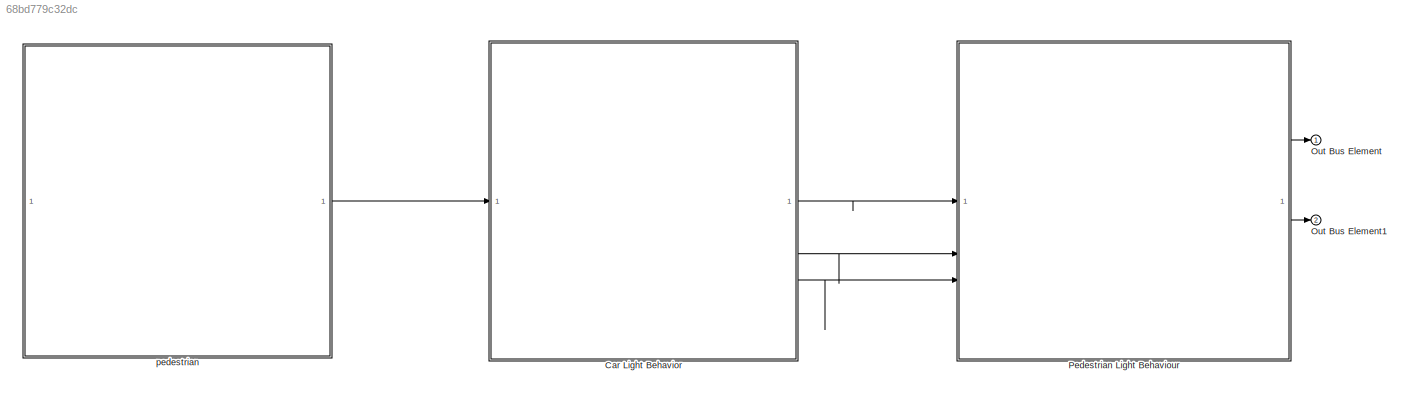
MODEL slx_68bd779c32dc
KIND model
CONFIG AbsTol = auto
CONFIG EnableMultiTasking = off
CONFIG FixedStep = 0.1
CONFIG MaxStep = auto
CONFIG MinStep = auto
CONFIG RelTol = 1e-3
CONFIG SampleTimeConstraint = Unconstrained
CONFIG SolverName = FixedStepAuto
CONFIG StartTime = 0.0
CONFIG StopTime = 100
BLOCK [ModelReference] Car Light Behavior
  ModelNameDialog = CarLightBehavior
  ModelReferenceVersion = 1.4
  PortSchema = {"entries":[{"content":{"headerSize":38,"margin":15,"minimumSpacing":25,"sides":[{"content":{"connectorIds":["In1"]},"type":"ConnectorPlacement.EquallySpacedRectSide","uuid":"48726829-d86d-461c-b3f1-a9b4bbd6b695"},{"content":{"connectorIds":["Out1","Out2","Out3","Out4"],"side":"RIGHT"},"type":"ConnectorPlacement.EquallySpacedRectSide","uuid":"4ff77f49-fdf8-4120-97ad-bb22e2b131c5"},{"content":{"sid...<+291ch>
BLOCK [Outport] Out Bus Element
BLOCK [Outport] Out Bus Element1
  Port = 2
BLOCK [ModelReference] Pedestrian Light Behaviour
  ModelNameDialog = PedestrianLightBehaviour
  ModelReferenceVersion = 1.3
  PortSchema = {"entries":[{"content":{"headerSize":38,"margin":15,"minimumSpacing":25,"sides":[{"content":{"connectorIds":["In1","In2","In3"]},"type":"ConnectorPlacement.EquallySpacedRectSide","uuid":"48726829-d86d-461c-b3f1-a9b4bbd6b695"},{"content":{"connectorIds":["Out1","Out2","Out3"],"side":"RIGHT"},"type":"ConnectorPlacement.EquallySpacedRectSide","uuid":"4ff77f49-fdf8-4120-97ad-bb22e2b131c5"},{"content":...<+296ch>
BLOCK [ModelReference] pedestrian
  ModelNameDialog = pedestrian.slx
  ModelReferenceVersion = 1.3
  PortSchema = {"entries":[{"content":{"headerSize":38,"margin":15,"minimumSpacing":25,"sides":[{"content":{},"type":"ConnectorPlacement.EquallySpacedRectSide","uuid":"48726829-d86d-461c-b3f1-a9b4bbd6b695"},{"content":{"connectorIds":["Out1"],"side":"RIGHT"},"type":"ConnectorPlacement.EquallySpacedRectSide","uuid":"4ff77f49-fdf8-4120-97ad-bb22e2b131c5"},{"content":{"side":"TOP"},"type":"ConnectorPlacement.Equall...<+248ch>
LINE Car Light Behavior:1 -> Pedestrian Light Behaviour:1
LINE Car Light Behavior:2 -> Pedestrian Light Behaviour:2
LINE Car Light Behavior:3 -> Pedestrian Light Behaviour:3
LINE Pedestrian Light Behaviour:1 -> Out Bus Element:1
LINE Pedestrian Light Behaviour:2 -> Out Bus Element1:1
LINE pedestrian:1 -> Car Light Behavior:1
